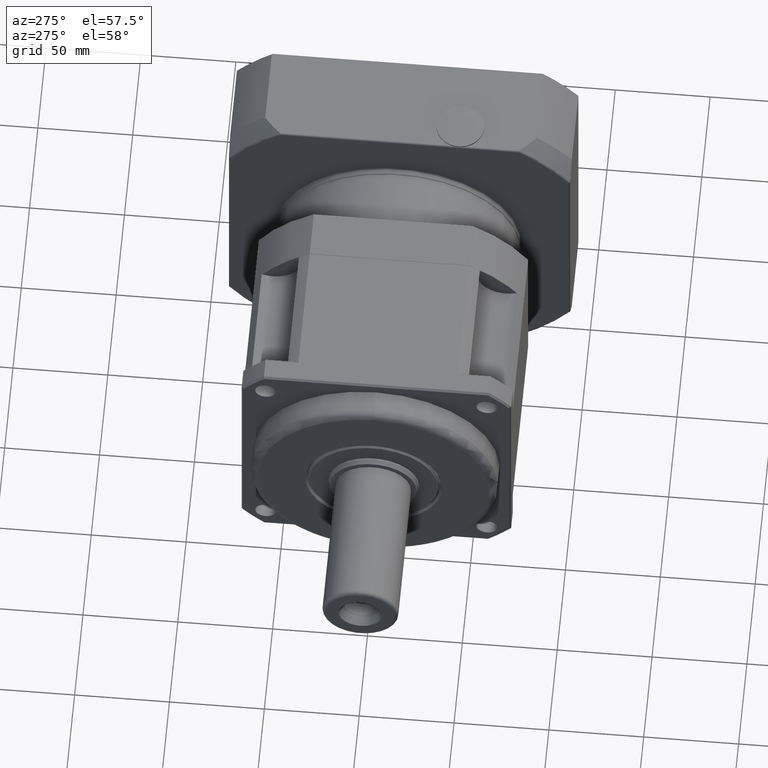
[diagram: clean part render]
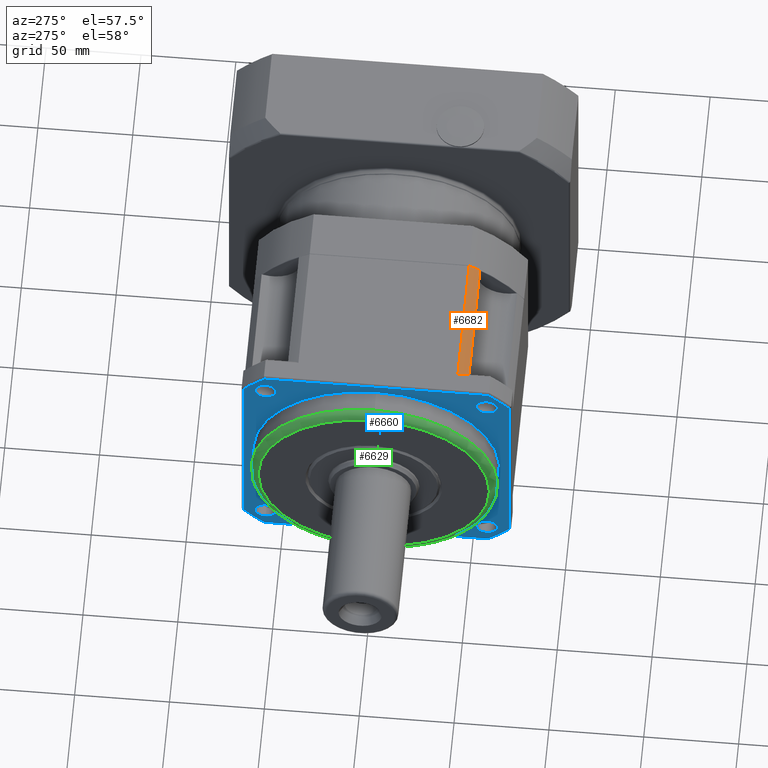
[diagram: same view with three faces highlighted in distinct colors, each labeled with its STEP entity id]
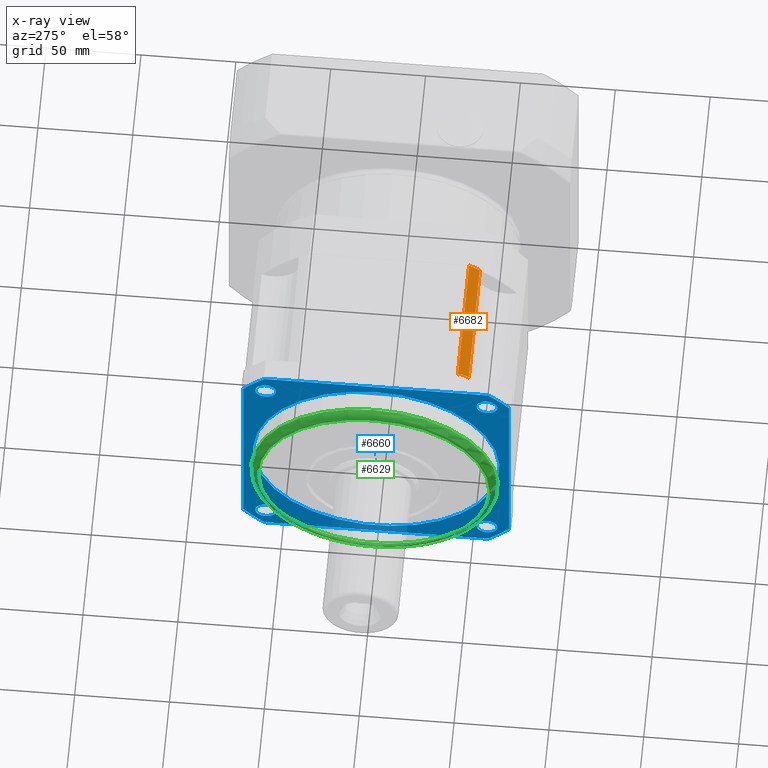
[diagram: x-ray of the same camera — body ghosted, the three highlighted faces saturated]
A machine part, auxiliary view with three faces highlighted in distinct colors.
The next image is the same camera in x-ray (body ghosted, the three faces saturated) — at least one of them is partly hidden behind the body in this view.
Their STEP definitions:

[orange] entity #6682 — the highlighted cylindrical surface (partial cylindrical patch) has radius 82.5 mm, axis along (-1, 0, 0).
#19=ELLIPSE('',#7352,116.67261889578,82.5);
#337=LINE('',#11261,#645);
#354=LINE('',#11412,#662);
#645=VECTOR('',#8838,68.);
#662=VECTOR('',#8977,67.);
#1342=CYLINDRICAL_SURFACE('',#7428,82.5);
#1874=FACE_OUTER_BOUND('',#2462,.T.);
#2462=EDGE_LOOP('',(#5586,#5587,#5588,#5589,#5590));
#2889=CIRCLE('',#7290,82.5);
#2949=CIRCLE('',#7424,82.5);
#3358=VERTEX_POINT('',#11082);
#3359=VERTEX_POINT('',#11084);
#3409=VERTEX_POINT('',#11243);
#3410=VERTEX_POINT('',#11245);
#3445=VERTEX_POINT('',#11411);
#4074=EDGE_CURVE('',#3358,#3359,#2889,.T.);
#4138=EDGE_CURVE('',#3409,#3410,#19,.F.);
#4145=EDGE_CURVE('',#3410,#3358,#337,.T.);
#4203=EDGE_CURVE('',#3445,#3359,#354,.T.);
#4207=EDGE_CURVE('',#3409,#3445,#2949,.T.);
#5586=ORIENTED_EDGE('',*,*,#4203,.T.);
#5587=ORIENTED_EDGE('',*,*,#4074,.F.);
#5588=ORIENTED_EDGE('',*,*,#4145,.F.);
#5589=ORIENTED_EDGE('',*,*,#4138,.F.);
#5590=ORIENTED_EDGE('',*,*,#4207,.T.);
#6682=ADVANCED_FACE('',(#1874),#1342,.T.);
#7290=AXIS2_PLACEMENT_3D('',#11085,#8670,#8671);
#7352=AXIS2_PLACEMENT_3D('',#11246,#8822,#8823);
#7424=AXIS2_PLACEMENT_3D('',#11419,#8987,#8988);
#7428=AXIS2_PLACEMENT_3D('',#11423,#8995,#8996);
#8670=DIRECTION('center_axis',(1.,-9.99200722162628E-16,-9.84803175675623E-16));
#8671=DIRECTION('ref_axis',(9.84803175675621E-16,-1.5681900222825E-15,1.));
#8822=DIRECTION('center_axis',(0.707106781186548,-1.85964736193537E-15,
0.707106781186547));
#8823=DIRECTION('ref_axis',(-0.707106781186547,-4.02336192537347E-16,0.707106781186548));
#8838=DIRECTION('',(1.,-9.99200722162628E-16,-9.84803175675623E-16));
#8977=DIRECTION('',(1.,-9.99200722162628E-16,-9.84803175675623E-16));
#8987=DIRECTION('center_axis',(1.,-9.99200722162628E-16,-9.84803175675623E-16));
#8988=DIRECTION('ref_axis',(9.84803175675621E-16,-1.5681900222825E-15,1.));
#8995=DIRECTION('center_axis',(-1.,9.99200722162628E-16,9.84803175675623E-16));
#8996=DIRECTION('ref_axis',(9.84803175675621E-16,-1.5681900222825E-15,1.));
#11082=CARTESIAN_POINT('',(-171.559385272836,-192.324882913271,-6.00252599293233));
#11084=CARTESIAN_POINT('',(-171.559385272836,-197.996535858311,-9.68057759431798));
#11085=CARTESIAN_POINT('Origin',(-171.559385272836,-150.310004596179,-77.0025259929323));
#11243=CARTESIAN_POINT('',(-238.559385272836,-193.970627587612,-7.00252599293226));
#11245=CARTESIAN_POINT('',(-239.559385272836,-192.324882913271,-6.00252599293227));
#11246=CARTESIAN_POINT('Origin',(-168.559385272836,-150.310004596179,-77.0025259929323));
#11261=CARTESIAN_POINT('',(-171.559385272836,-192.324882913271,-6.00252599293233));
#11411=CARTESIAN_POINT('',(-238.559385272836,-197.996535858311,-9.6805775943179));
#11412=CARTESIAN_POINT('',(-171.559385272836,-197.996535858311,-9.68057759431798));
#11419=CARTESIAN_POINT('Origin',(-238.559385272836,-150.310004596179,-77.0025259929322));
#11423=CARTESIAN_POINT('Origin',(-171.559385272836,-150.310004596179,-77.0025259929323));

[blue] entity #6660 — the highlighted planar face has unit normal (-1, 0, 0).
#344=LINE('',#11301,#652);
#345=LINE('',#11319,#653);
#346=LINE('',#11333,#654);
#347=LINE('',#11348,#655);
#652=VECTOR('',#8871,117.851601601336);
#653=VECTOR('',#8878,117.851601601336);
#654=VECTOR('',#8885,117.851601601336);
#655=VECTOR('',#8894,117.851601601336);
#1502=FACE_BOUND('',#2428,.T.);
#1503=FACE_BOUND('',#2429,.T.);
#1504=FACE_BOUND('',#2430,.T.);
#1505=FACE_BOUND('',#2431,.T.);
#1506=FACE_BOUND('',#2432,.T.);
#1852=FACE_OUTER_BOUND('',#2427,.T.);
#2427=EDGE_LOOP('',(#5474,#5475,#5476,#5477,#5478,#5479,#5480,#5481));
#2428=EDGE_LOOP('',(#5482));
#2429=EDGE_LOOP('',(#5483));
#2430=EDGE_LOOP('',(#5484));
#2431=EDGE_LOOP('',(#5485));
#2432=EDGE_LOOP('',(#5486));
#2908=CIRCLE('',#7327,65.);
#2924=CIRCLE('',#7373,91.5);
#2925=CIRCLE('',#7376,91.5);
#2927=CIRCLE('',#7380,91.5);
#2928=CIRCLE('',#7383,91.5);
#2929=CIRCLE('',#7386,5.5);
#2930=CIRCLE('',#7387,5.5);
#2931=CIRCLE('',#7388,5.5);
#2932=CIRCLE('',#7389,5.5);
#3377=VERTEX_POINT('',#11139);
#3423=VERTEX_POINT('',#11299);
#3424=VERTEX_POINT('',#11300);
#3425=VERTEX_POINT('',#11311);
#3426=VERTEX_POINT('',#11318);
#3427=VERTEX_POINT('',#11325);
#3428=VERTEX_POINT('',#11332);
#3429=VERTEX_POINT('',#11340);
#3430=VERTEX_POINT('',#11347);
#3431=VERTEX_POINT('',#11357);
#3432=VERTEX_POINT('',#11359);
#3433=VERTEX_POINT('',#11361);
#3434=VERTEX_POINT('',#11363);
#4093=EDGE_CURVE('',#3377,#3377,#2908,.T.);
#4162=EDGE_CURVE('',#3423,#3424,#344,.T.);
#4165=EDGE_CURVE('',#3424,#3425,#2924,.T.);
#4167=EDGE_CURVE('',#3425,#3426,#345,.T.);
#4169=EDGE_CURVE('',#3426,#3427,#2925,.T.);
#4171=EDGE_CURVE('',#3427,#3428,#346,.T.);
#4174=EDGE_CURVE('',#3428,#3429,#2927,.T.);
#4176=EDGE_CURVE('',#3429,#3430,#347,.T.);
#4178=EDGE_CURVE('',#3430,#3423,#2928,.T.);
#4179=EDGE_CURVE('',#3431,#3431,#2929,.T.);
#4180=EDGE_CURVE('',#3432,#3432,#2930,.T.);
#4181=EDGE_CURVE('',#3433,#3433,#2931,.T.);
#4182=EDGE_CURVE('',#3434,#3434,#2932,.T.);
#5474=ORIENTED_EDGE('',*,*,#4162,.F.);
#5475=ORIENTED_EDGE('',*,*,#4178,.F.);
#5476=ORIENTED_EDGE('',*,*,#4176,.F.);
#5477=ORIENTED_EDGE('',*,*,#4174,.F.);
#5478=ORIENTED_EDGE('',*,*,#4171,.F.);
#5479=ORIENTED_EDGE('',*,*,#4169,.F.);
#5480=ORIENTED_EDGE('',*,*,#4167,.F.);
#5481=ORIENTED_EDGE('',*,*,#4165,.F.);
#5482=ORIENTED_EDGE('',*,*,#4093,.T.);
#5483=ORIENTED_EDGE('',*,*,#4179,.T.);
#5484=ORIENTED_EDGE('',*,*,#4180,.T.);
#5485=ORIENTED_EDGE('',*,*,#4181,.T.);
#5486=ORIENTED_EDGE('',*,*,#4182,.T.);
#6301=PLANE('',#7385);
#6660=ADVANCED_FACE('',(#1852,#1502,#1503,#1504,#1505,#1506),#6301,.T.);
#7327=AXIS2_PLACEMENT_3D('',#11140,#8744,#8745);
#7373=AXIS2_PLACEMENT_3D('',#11312,#8874,#8875);
#7376=AXIS2_PLACEMENT_3D('',#11326,#8881,#8882);
#7380=AXIS2_PLACEMENT_3D('',#11341,#8890,#8891);
#7383=AXIS2_PLACEMENT_3D('',#11354,#8897,#8898);
#7385=AXIS2_PLACEMENT_3D('',#11356,#8901,#8902);
#7386=AXIS2_PLACEMENT_3D('',#11358,#8903,#8904);
#7387=AXIS2_PLACEMENT_3D('',#11360,#8905,#8906);
#7388=AXIS2_PLACEMENT_3D('',#11362,#8907,#8908);
#7389=AXIS2_PLACEMENT_3D('',#11364,#8909,#8910);
#8744=DIRECTION('center_axis',(1.,-9.99200722162628E-16,-9.84803175675623E-16));
#8745=DIRECTION('ref_axis',(-9.84803175675621E-16,1.5681900222825E-15,-1.));
#8871=DIRECTION('',(-9.84803175675621E-16,1.5681900222825E-15,-1.));
#8874=DIRECTION('center_axis',(1.,-9.99200722162628E-16,-9.84803175675623E-16));
#8875=DIRECTION('ref_axis',(-9.84803175675621E-16,1.5681900222825E-15,-1.));
#8878=DIRECTION('',(9.9920072216263E-16,1.,1.75583335038816E-15));
#8881=DIRECTION('center_axis',(1.,-9.99200722162628E-16,-9.84803175675623E-16));
#8882=DIRECTION('ref_axis',(-9.84803175675621E-16,1.5681900222825E-15,-1.));
#8885=DIRECTION('',(9.84803175675621E-16,-1.69328557435294E-15,1.));
#8890=DIRECTION('center_axis',(1.,-9.99200722162628E-16,-9.84803175675623E-16));
#8891=DIRECTION('ref_axis',(9.84803175675621E-16,-1.5681900222825E-15,1.));
#8894=DIRECTION('',(-9.99200722162629E-16,-1.,-1.63073779831772E-15));
#8897=DIRECTION('center_axis',(1.,-9.99200722162628E-16,-9.84803175675623E-16));
#8898=DIRECTION('ref_axis',(9.84803175675621E-16,-1.5681900222825E-15,1.));
#8901=DIRECTION('center_axis',(-1.,9.99200722162628E-16,9.84803175675623E-16));
#8902=DIRECTION('ref_axis',(0.,-2.8421709430404E-15,1.));
#8903=DIRECTION('center_axis',(1.,-9.99200722162628E-16,-9.84803175675623E-16));
#8904=DIRECTION('ref_axis',(-9.84803175675621E-16,1.5681900222825E-15,-1.));
#8905=DIRECTION('center_axis',(1.,-9.99200722162628E-16,-9.84803175675623E-16));
#8906=DIRECTION('ref_axis',(9.99200722162629E-16,1.,1.50695768232513E-15));
#8907=DIRECTION('center_axis',(1.,-9.99200722162628E-16,-9.84803175675623E-16));
#8908=DIRECTION('ref_axis',(9.84803175675622E-16,-1.44572534236776E-15,
1.));
#8909=DIRECTION('center_axis',(1.,-9.99200722162628E-16,-9.84803175675623E-16));
#8910=DIRECTION('ref_axis',(-9.99200722162629E-16,-1.,-1.38449300241039E-15));
#11139=CARTESIAN_POINT('',(-250.559385272836,-150.310004596179,-12.0025259929322));
#11140=CARTESIAN_POINT('Origin',(-250.559385272836,-150.310004596179,-77.0025259929322));
#11299=CARTESIAN_POINT('',(-250.559385272836,-220.310004596179,-18.0767251922644));
#11300=CARTESIAN_POINT('',(-250.559385272837,-220.310004596179,-135.9283267936));
#11301=CARTESIAN_POINT('',(-250.559385272837,-220.310004596179,-112.502525992932));
#11311=CARTESIAN_POINT('',(-250.559385272837,-209.235805396847,-147.002525992932));
#11312=CARTESIAN_POINT('Origin',(-250.559385272836,-150.310004596179,-77.0025259929322));
#11318=CARTESIAN_POINT('',(-250.559385272836,-91.384203795511,-147.002525992932));
#11319=CARTESIAN_POINT('',(-250.559385272836,-114.810004596179,-147.002525992932));
#11325=CARTESIAN_POINT('',(-250.559385272836,-80.310004596179,-135.9283267936));
#11326=CARTESIAN_POINT('Origin',(-250.559385272836,-150.310004596179,-77.0025259929322));
#11332=CARTESIAN_POINT('',(-250.559385272836,-80.3100045961792,-18.0767251922641));
#11333=CARTESIAN_POINT('',(-250.559385272836,-80.3100045961791,-41.5025259929321));
#11340=CARTESIAN_POINT('',(-250.559385272836,-91.3842037955113,-7.00252599293209));
#11341=CARTESIAN_POINT('Origin',(-250.559385272836,-150.310004596179,-77.0025259929322));
#11347=CARTESIAN_POINT('',(-250.559385272836,-209.235805396847,-7.00252599293228));
#11348=CARTESIAN_POINT('',(-250.559385272836,-185.810004596179,-7.00252599293225));
#11354=CARTESIAN_POINT('Origin',(-250.559385272836,-150.310004596179,-77.0025259929322));
#11356=CARTESIAN_POINT('Origin',(-250.559385272836,-150.310004596179,-77.0025259929322));
#11357=CARTESIAN_POINT('',(-250.559385272836,-208.646314044069,-13.1662165450422));
#11358=CARTESIAN_POINT('Origin',(-250.559385272836,-208.646314044069,-18.6662165450422));
#11359=CARTESIAN_POINT('',(-250.559385272837,-214.146314044069,-135.338835440823));
#11360=CARTESIAN_POINT('Origin',(-250.559385272837,-208.646314044069,-135.338835440822));
#11361=CARTESIAN_POINT('',(-250.559385272836,-91.9736951482888,-140.838835440822));
#11362=CARTESIAN_POINT('Origin',(-250.559385272836,-91.9736951482888,-135.338835440822));
#11363=CARTESIAN_POINT('',(-250.559385272836,-86.473695148289,-18.6662165450419));
#11364=CARTESIAN_POINT('Origin',(-250.559385272836,-91.973695148289,-18.6662165450419));

[green] entity #6629 — the highlighted toroidal blend (fillet) surface has major radius 61 mm and minor (blend) radius 4 mm.
#825=TOROIDAL_SURFACE('',#7324,61.,4.);
#1499=FACE_BOUND('',#2394,.T.);
#1821=FACE_OUTER_BOUND('',#2393,.T.);
#2393=EDGE_LOOP('',(#5335));
#2394=EDGE_LOOP('',(#5336));
#2906=CIRCLE('',#7323,61.);
#2907=CIRCLE('',#7325,65.);
#3375=VERTEX_POINT('',#11133);
#3376=VERTEX_POINT('',#11136);
#4091=EDGE_CURVE('',#3375,#3375,#2906,.T.);
#4092=EDGE_CURVE('',#3376,#3376,#2907,.T.);
#5335=ORIENTED_EDGE('',*,*,#4092,.T.);
#5336=ORIENTED_EDGE('',*,*,#4091,.T.);
#6629=ADVANCED_FACE('',(#1821,#1499),#825,.T.);
#7323=AXIS2_PLACEMENT_3D('',#11134,#8736,#8737);
#7324=AXIS2_PLACEMENT_3D('',#11135,#8738,#8739);
#7325=AXIS2_PLACEMENT_3D('',#11137,#8740,#8741);
#8736=DIRECTION('center_axis',(1.,-9.99200722162628E-16,-9.84803175675623E-16));
#8737=DIRECTION('ref_axis',(-9.84803175675621E-16,1.5681900222825E-15,-1.));
#8738=DIRECTION('center_axis',(-1.,9.99200722162628E-16,9.84803175675623E-16));
#8739=DIRECTION('ref_axis',(8.74514136320123E-16,-1.31177120448019E-15,
1.));
#8740=DIRECTION('center_axis',(-1.,9.99200722162628E-16,9.84803175675623E-16));
#8741=DIRECTION('ref_axis',(-9.84803175675621E-16,1.5681900222825E-15,-1.));
#11133=CARTESIAN_POINT('',(-265.559385272836,-150.310004596179,-16.0025259929322));
#11134=CARTESIAN_POINT('Origin',(-265.559385272836,-150.310004596179,-77.0025259929322));
#11135=CARTESIAN_POINT('Origin',(-261.559385272836,-150.310004596179,-77.0025259929322));
#11136=CARTESIAN_POINT('',(-261.559385272836,-150.310004596179,-12.0025259929322));
#11137=CARTESIAN_POINT('Origin',(-261.559385272836,-150.310004596179,-77.0025259929322));